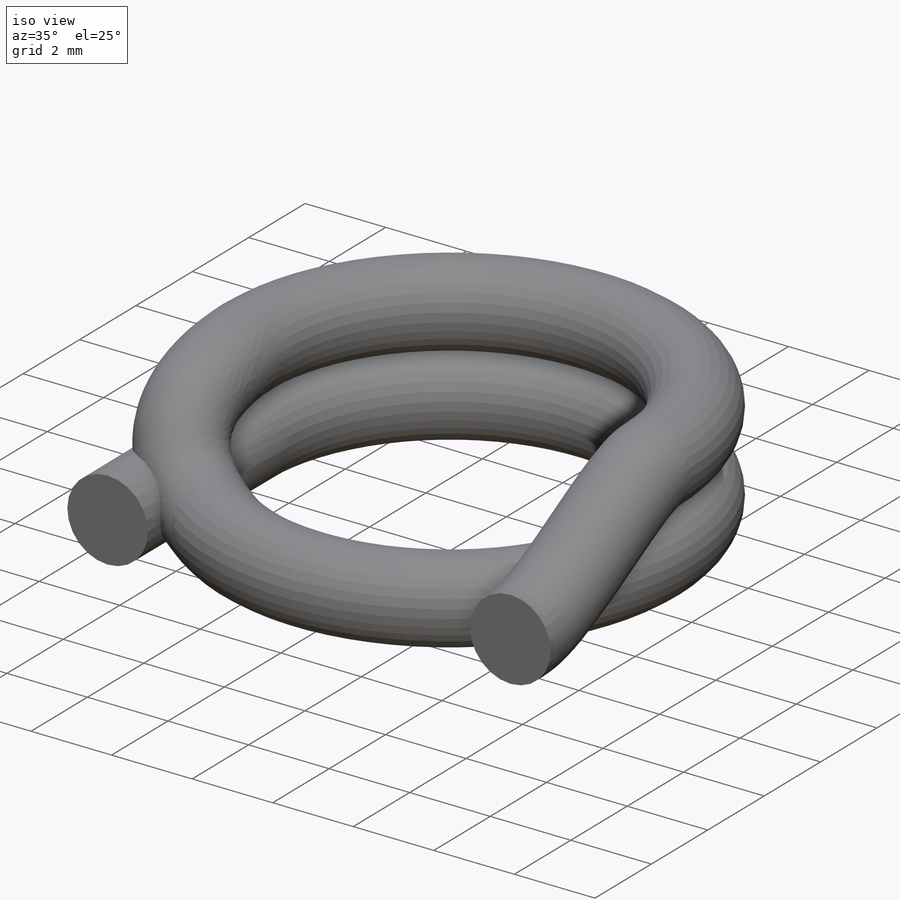
[diagram: iso view]
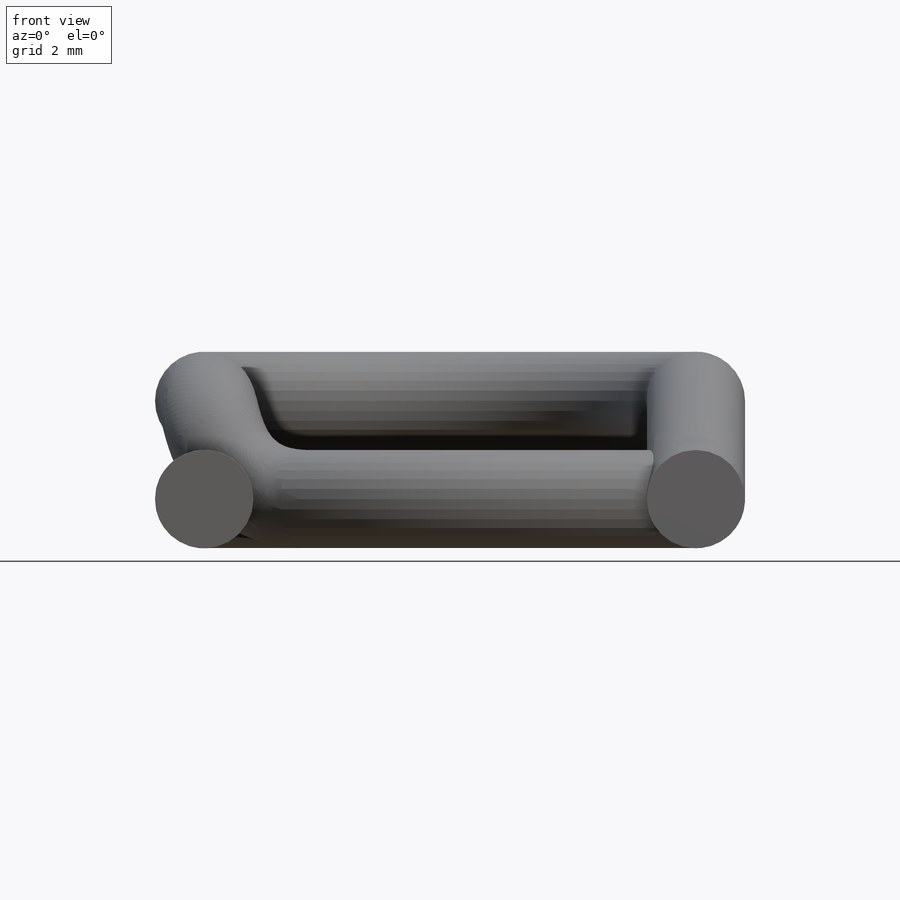
[diagram: front view]
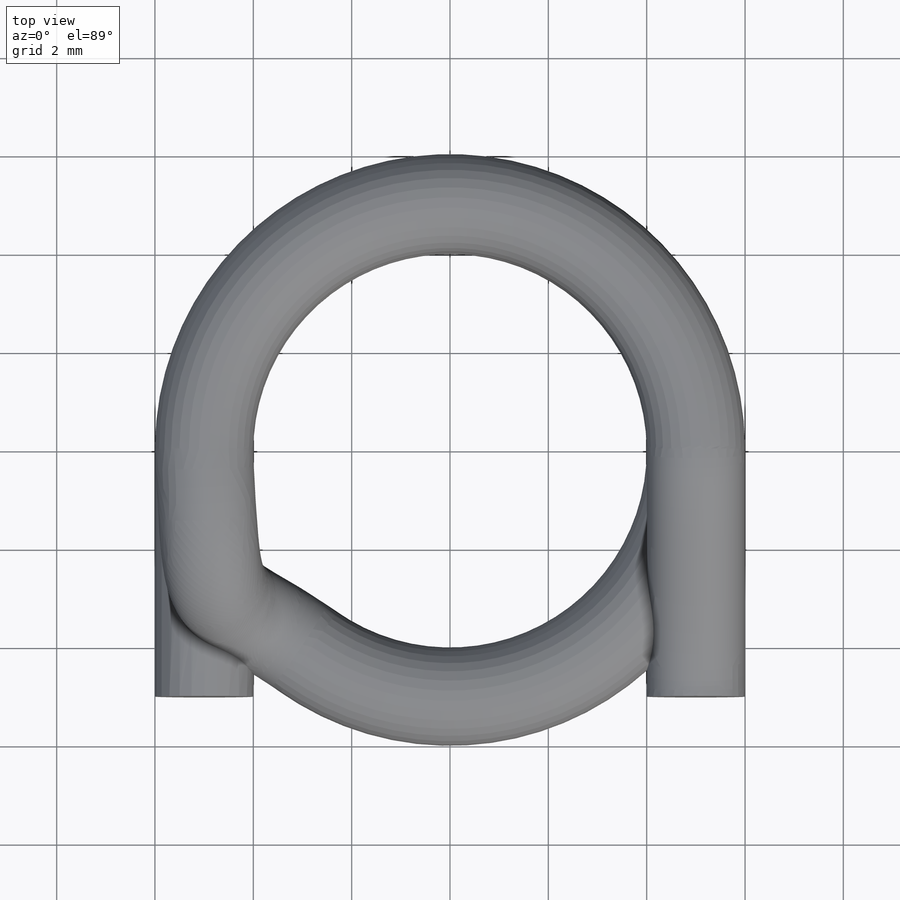
[diagram: top view]
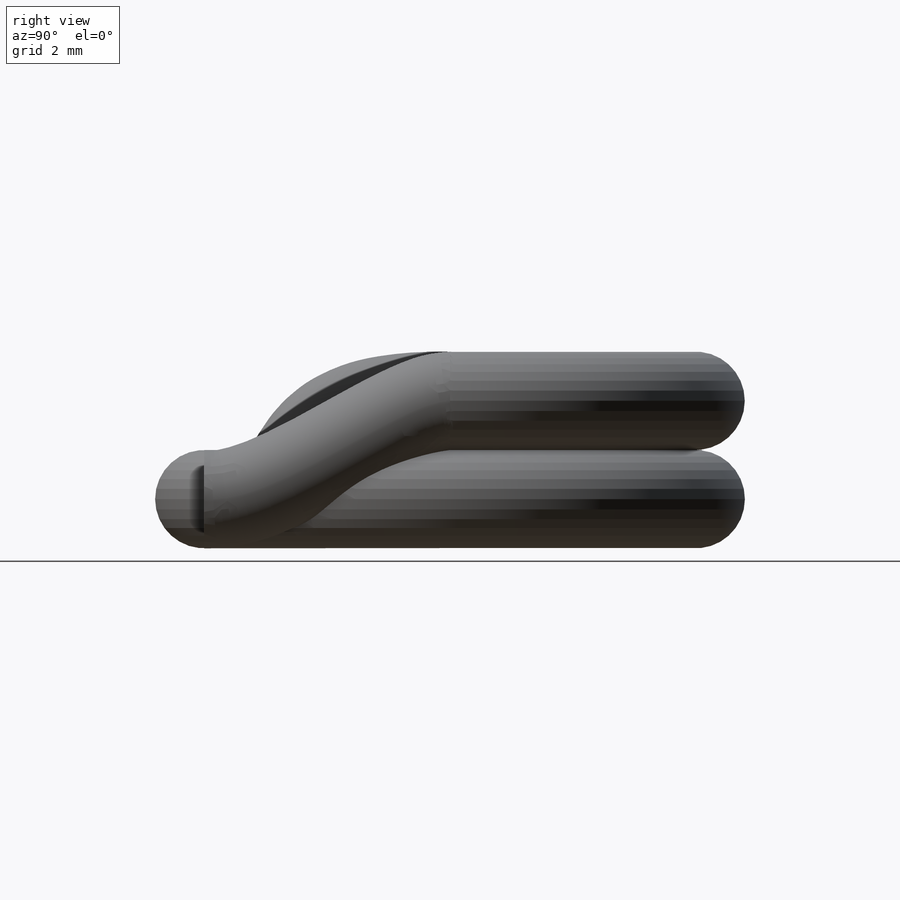
[diagram: right view]
SOLIDWORKS PART (.sldprt)
format: sldprt  version: not decoded by parser v0  size: 534,528 bytes
history: native  units: mm
features: sketch x12, plane x7, sweep x4, material x1, extrude x1, boolean_combine x1 (+10 scaffold rows collapsed)
feature tree (36):
  scaffold x10  (default folders/planes/origin — collapsed)
  material  "Material <nicht angegeben>"
  plane  "Ebene vorne"
  plane  "Ebene oben"
  plane  "Ebene rechts"
  sketch  "Skizze1"  dims[c1.D1=10.0mm c1.D2=5.0mm c2.D2=90.0deg c3.D2=5.0mm c4.D2=55.0deg]
  plane  "Ebene1"  Offset=2mm
  sketch  "Skizze2"
  plane  "Ebene2"  Offset=10mm
  sketch  "Skizze3"
  extrude  "Aufsatz-Linear austragen1"  Depth=20mm
  plane  "Ebene3"
  sketch  "Skizze5"
  plane  "Ebene4"
  sketch  "Skizze6"  dims[D1=2.0001mm]
  sketch  "3D-Skizze4"
  sketch  "3D-Skizze5"
  sweep  "Austragung9"
  sketch  "3D-Skizze6"  dims[c1.D1=~7.565398mm c2.D1=~1.313184mm]
  sketch  "Skizze8"  dims[D1=0.0mm]
  sweep  "Austragung12"
  sketch  "Skizze9"  dims[D1=0.0mm]
  sweep  "Austragung13"
  sketch  "Skizze10"  dims[D1=0.0mm]
  sketch  "3D-Skizze7"  dims[D1=~7.806068mm]
  sweep  "Austragung16"
  boolean_combine  "Kombinieren2"
decode coverage: 8 of 18 modeling features carry decoded parameters
note: ~ marks probable driven/reference dimensions
summary: profile_refs inferred from adjacent sketches, not decoded
note: suppression state not decoded; provenance and decode notes live in map.json
